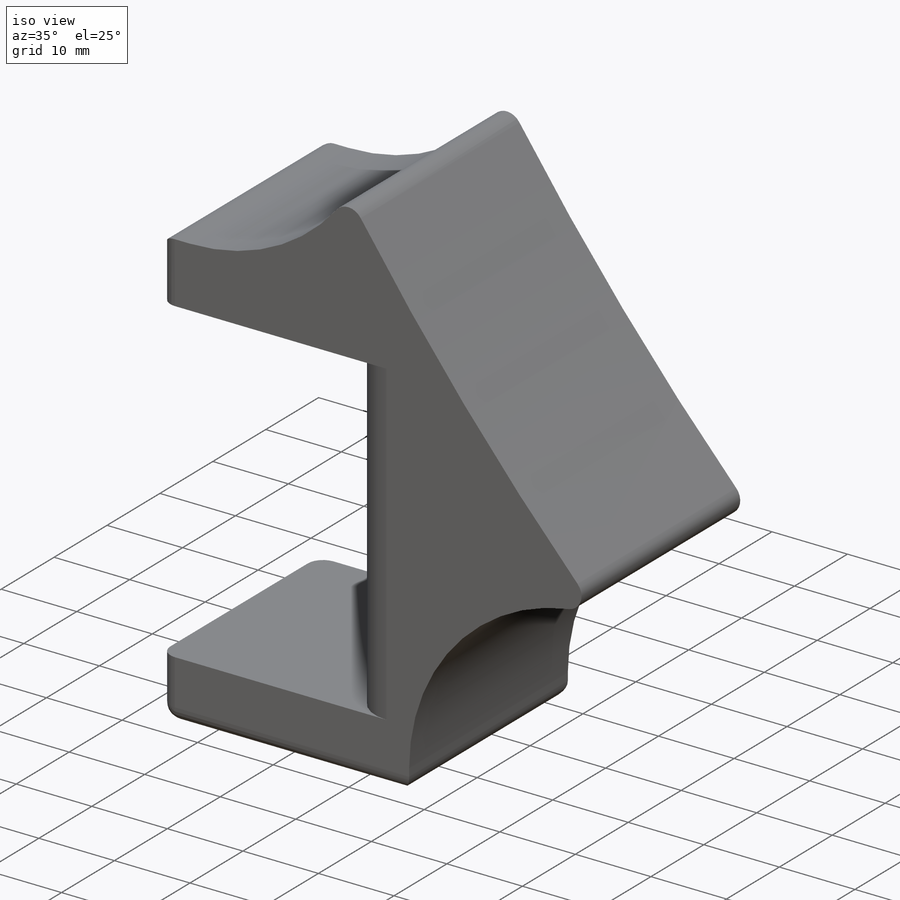
[diagram: iso view]
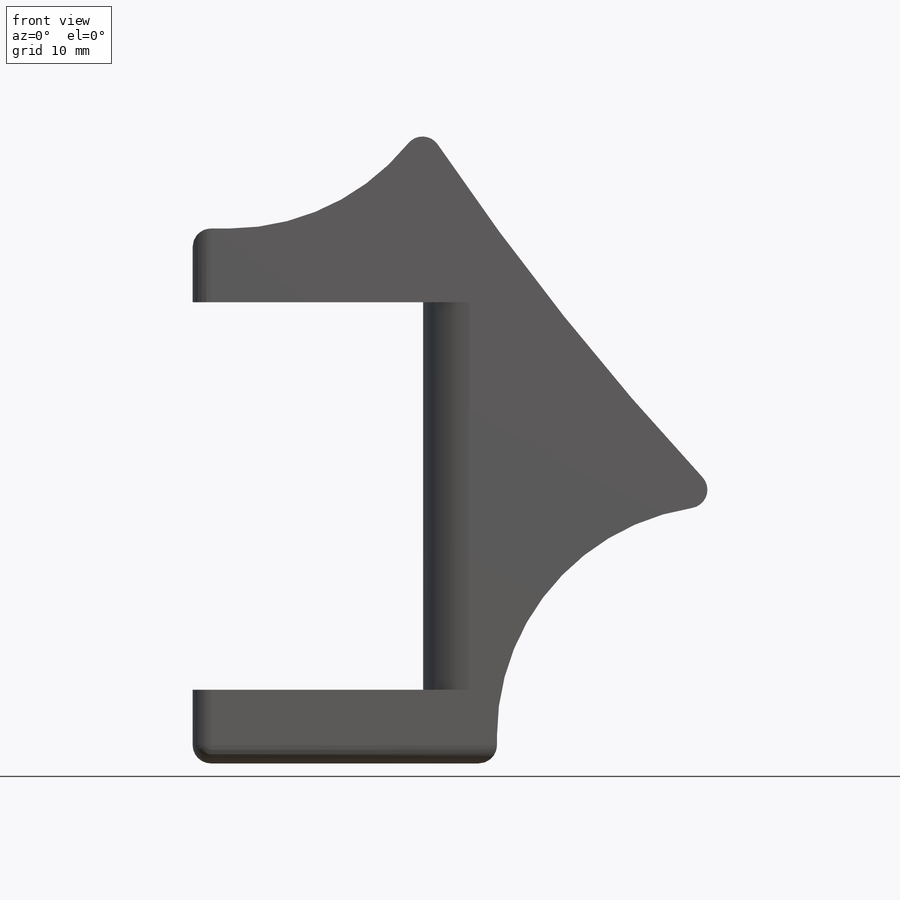
[diagram: front view]
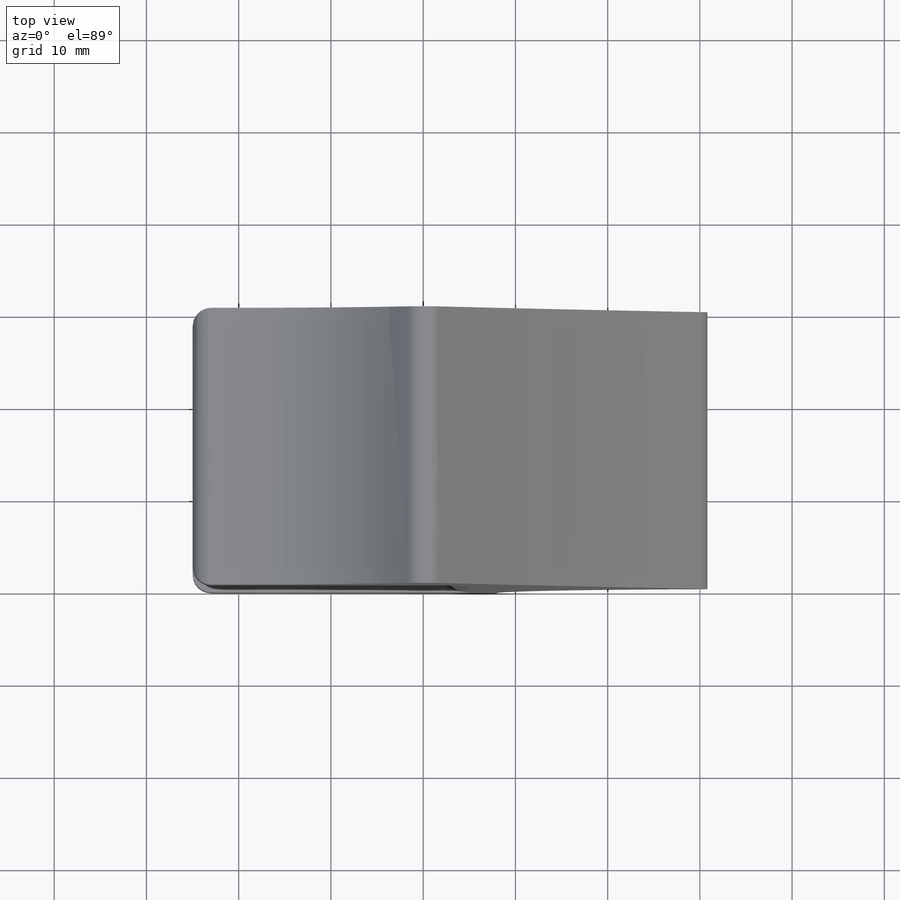
[diagram: top view]
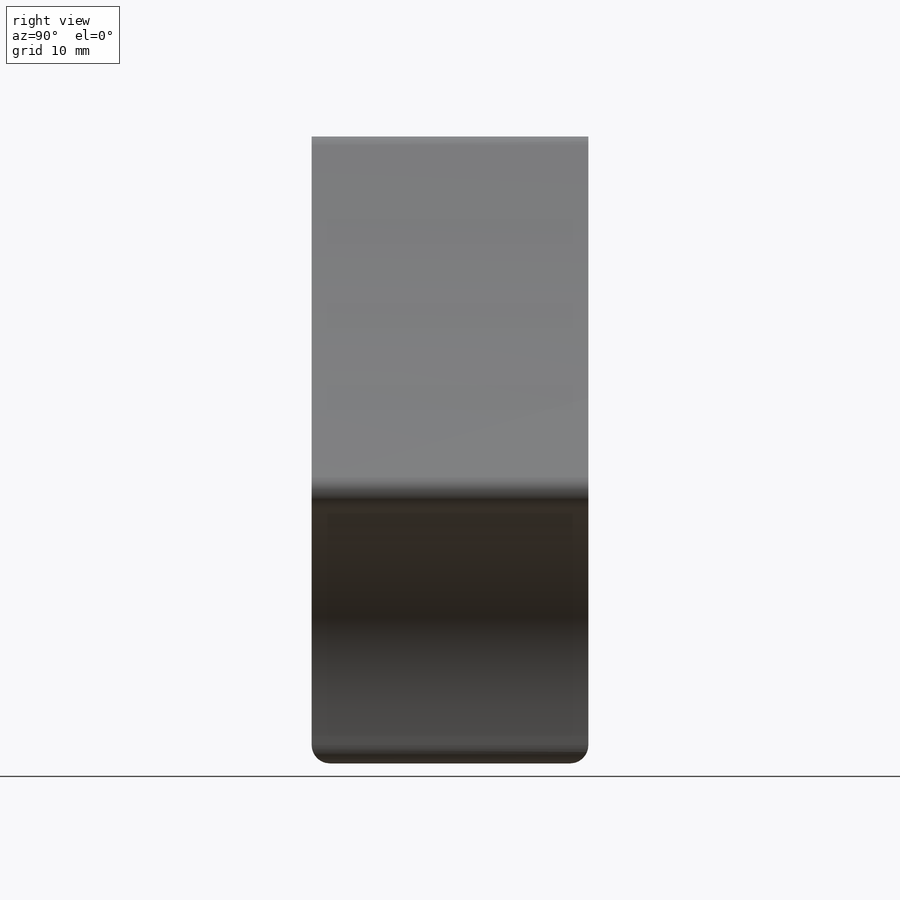
[diagram: right view]
SOLIDWORKS PART (.sldprt)
format: sldprt  version: not decoded by parser v0  size: 217,600 bytes
history: native  units: mm
features: fillet x7, plane x3, sketch x2, extrude x2, material x1 (+9 scaffold rows collapsed)
feature tree (24):
  scaffold x9  (default folders/planes/origin — collapsed)
  material  "Matériau <non spécifié>"
  plane  "Plan de face"
  plane  "Plan de dessus"
  plane  "Plan de droite"
  sketch  "Esquisse1"  dims[D1=8.0mm D2=8.0mm D3=33.0mm D4=33.0mm D5=42.0mm D6=25.0mm]
  extrude  "Boss.-Extru.1"  Depth=30mm
  sketch  "Esquisse7"  dims[D1=300.0mm D2=250.0mm D3=30.0mm]
  extrude  "Boss.-Extru.5"  [1 undecoded]
  fillet  "Congé13"  Radius=25mm
  fillet  "Congé14"  Radius=25mm
  fillet  "Congé15"  Radius=2mm
  fillet  "Congé16"  Radius=2mm
  fillet  "Congé17"  Radius=2mm
  fillet  "Congé18"  Radius=2mm
  fillet  "Congé19"  Radius=5mm
decode coverage: 10 of 11 modeling features carry decoded parameters
note: 1 parameter value undecoded
note: suppression state not decoded; provenance and decode notes live in map.json
